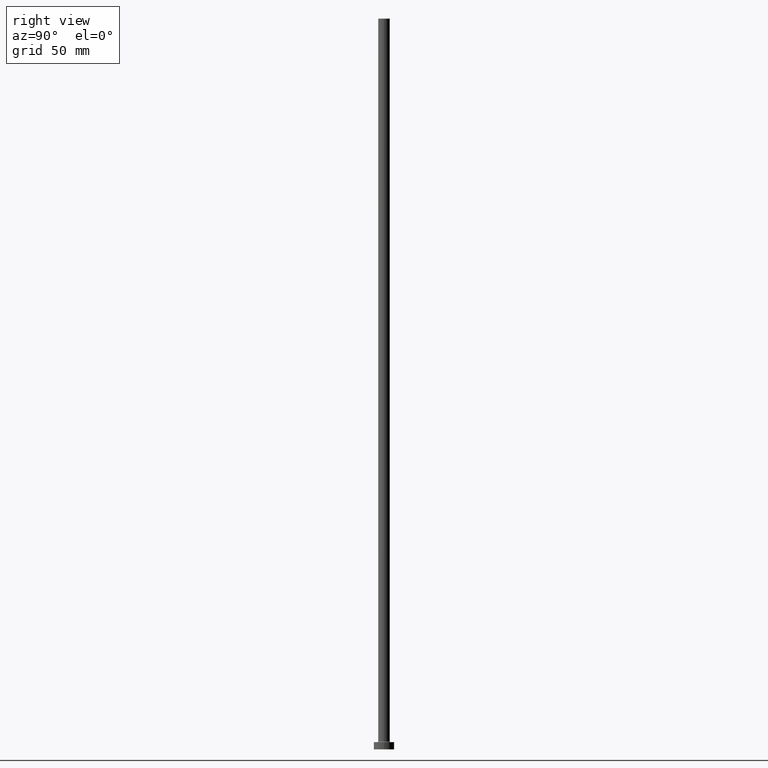
[diagram: clean part render]
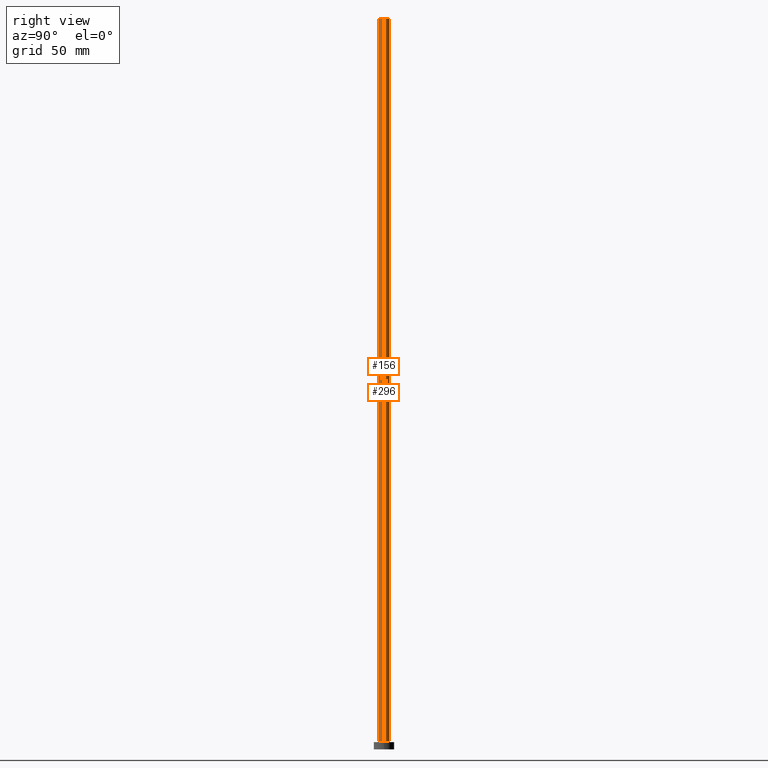
[diagram: same view with one multi-face feature highlighted, each face labeled with its STEP entity id]
A machine part, right view. The highlighted faces form ONE feature: a constant-radius fillet chain: 2 tangent blend faces with common blend radius 4 mm. The faces share edges in the B-rep.
Their STEP definitions:
[1] entity #296 (Cylinder):
#21 = VERTEX_POINT ( 'NONE', #214 ) ;
#26 = DIRECTION ( 'NONE',  ( 1.000000000000000000, 0.000000000000000000, 0.000000000000000000 ) ) ;
#33 = DIRECTION ( 'NONE',  ( -0.000000000000000000, -0.000000000000000000, -1.000000000000000000 ) ) ;
#35 = VERTEX_POINT ( 'NONE', #336 ) ;
#41 = EDGE_LOOP ( 'NONE', ( #165, #67, #358, #455 ) ) ;
#63 = CARTESIAN_POINT ( 'NONE',  ( 4.000000000000000000, 4.898587196589412829E-16, 500.0000000000000000 ) ) ;
#67 = ORIENTED_EDGE ( 'NONE', *, *, #305, .T. ) ;
#68 = DIRECTION ( 'NONE',  ( 1.000000000000000000, 0.000000000000000000, 0.000000000000000000 ) ) ;
#94 = CARTESIAN_POINT ( 'NONE',  ( -4.000000000000000000, 0.000000000000000000, 500.0000000000000000 ) ) ;
#115 = EDGE_CURVE ( 'NONE', #179, #326, #457, .T. ) ;
#117 = AXIS2_PLACEMENT_3D ( 'NONE', #284, #318, #354 ) ;
#142 = CYLINDRICAL_SURFACE ( 'NONE', #117, 4.000000000000000000 ) ;
#165 = ORIENTED_EDGE ( 'NONE', *, *, #115, .F. ) ;
#172 = AXIS2_PLACEMENT_3D ( 'NONE', #177, #429, #68 ) ;
#175 = CARTESIAN_POINT ( 'NONE',  ( -4.000000000000000000, 0.000000000000000000, 500.0000000000000000 ) ) ;
#177 = CARTESIAN_POINT ( 'NONE',  ( 0.000000000000000000, 0.000000000000000000, 5.500000000000005329 ) ) ;
#179 = VERTEX_POINT ( 'NONE', #233 ) ;
#214 = CARTESIAN_POINT ( 'NONE',  ( 4.000000000000000000, 4.898587196589412829E-16, 5.500000000000005329 ) ) ;
#233 = CARTESIAN_POINT ( 'NONE',  ( 4.000000000000000000, 4.898587196589412829E-16, 500.0000000000000000 ) ) ;
#235 = DIRECTION ( 'NONE',  ( 0.000000000000000000, 0.000000000000000000, 1.000000000000000000 ) ) ;
#241 = LINE ( 'NONE', #63, #299 ) ;
#242 = VECTOR ( 'NONE', #33, 1000.000000000000000 ) ;
#250 = LINE ( 'NONE', #94, #242 ) ;
#266 = AXIS2_PLACEMENT_3D ( 'NONE', #270, #235, #26 ) ;
#270 = CARTESIAN_POINT ( 'NONE',  ( 0.000000000000000000, 0.000000000000000000, 500.0000000000000000 ) ) ;
#284 = CARTESIAN_POINT ( 'NONE',  ( 0.000000000000000000, 0.000000000000000000, 500.0000000000000000 ) ) ;
#296 = ADVANCED_FACE ( 'NONE', ( #461 ), #142, .T. ) ;
#299 = VECTOR ( 'NONE', #389, 1000.000000000000000 ) ;
#305 = EDGE_CURVE ( 'NONE', #179, #21, #241, .T. ) ;
#318 = DIRECTION ( 'NONE',  ( -0.000000000000000000, -0.000000000000000000, -1.000000000000000000 ) ) ;
#326 = VERTEX_POINT ( 'NONE', #175 ) ;
#332 = EDGE_CURVE ( 'NONE', #326, #35, #250, .T. ) ;
#336 = CARTESIAN_POINT ( 'NONE',  ( -4.000000000000000000, 0.000000000000000000, 5.500000000000005329 ) ) ;
#354 = DIRECTION ( 'NONE',  ( -1.000000000000000000, 0.000000000000000000, 0.000000000000000000 ) ) ;
#358 = ORIENTED_EDGE ( 'NONE', *, *, #366, .T. ) ;
#366 = EDGE_CURVE ( 'NONE', #21, #35, #417, .T. ) ;
#389 = DIRECTION ( 'NONE',  ( -0.000000000000000000, -0.000000000000000000, -1.000000000000000000 ) ) ;
#417 = CIRCLE ( 'NONE', #172, 4.000000000000000000 ) ;
#429 = DIRECTION ( 'NONE',  ( 0.000000000000000000, 0.000000000000000000, 1.000000000000000000 ) ) ;
#455 = ORIENTED_EDGE ( 'NONE', *, *, #332, .F. ) ;
#457 = CIRCLE ( 'NONE', #266, 4.000000000000000000 ) ;
#461 = FACE_OUTER_BOUND ( 'NONE', #41, .T. ) ;
[2] entity #156 (Cylinder):
#1 = ORIENTED_EDGE ( 'NONE', *, *, #434, .T. ) ;
#21 = VERTEX_POINT ( 'NONE', #214 ) ;
#33 = DIRECTION ( 'NONE',  ( -0.000000000000000000, -0.000000000000000000, -1.000000000000000000 ) ) ;
#35 = VERTEX_POINT ( 'NONE', #336 ) ;
#46 = AXIS2_PLACEMENT_3D ( 'NONE', #237, #415, #91 ) ;
#63 = CARTESIAN_POINT ( 'NONE',  ( 4.000000000000000000, 4.898587196589412829E-16, 500.0000000000000000 ) ) ;
#89 = DIRECTION ( 'NONE',  ( 1.000000000000000000, 0.000000000000000000, 0.000000000000000000 ) ) ;
#91 = DIRECTION ( 'NONE',  ( -1.000000000000000000, 0.000000000000000000, 0.000000000000000000 ) ) ;
#94 = CARTESIAN_POINT ( 'NONE',  ( -4.000000000000000000, 0.000000000000000000, 500.0000000000000000 ) ) ;
#140 = EDGE_LOOP ( 'NONE', ( #386, #174, #348, #1 ) ) ;
#155 = AXIS2_PLACEMENT_3D ( 'NONE', #453, #166, #300 ) ;
#156 = ADVANCED_FACE ( 'NONE', ( #304 ), #445, .T. ) ;
#160 = CIRCLE ( 'NONE', #155, 4.000000000000000000 ) ;
#166 = DIRECTION ( 'NONE',  ( 0.000000000000000000, 0.000000000000000000, 1.000000000000000000 ) ) ;
#174 = ORIENTED_EDGE ( 'NONE', *, *, #412, .F. ) ;
#175 = CARTESIAN_POINT ( 'NONE',  ( -4.000000000000000000, 0.000000000000000000, 500.0000000000000000 ) ) ;
#179 = VERTEX_POINT ( 'NONE', #233 ) ;
#214 = CARTESIAN_POINT ( 'NONE',  ( 4.000000000000000000, 4.898587196589412829E-16, 5.500000000000005329 ) ) ;
#233 = CARTESIAN_POINT ( 'NONE',  ( 4.000000000000000000, 4.898587196589412829E-16, 500.0000000000000000 ) ) ;
#237 = CARTESIAN_POINT ( 'NONE',  ( 0.000000000000000000, 0.000000000000000000, 500.0000000000000000 ) ) ;
#241 = LINE ( 'NONE', #63, #299 ) ;
#242 = VECTOR ( 'NONE', #33, 1000.000000000000000 ) ;
#250 = LINE ( 'NONE', #94, #242 ) ;
#258 = CIRCLE ( 'NONE', #379, 4.000000000000000000 ) ;
#299 = VECTOR ( 'NONE', #389, 1000.000000000000000 ) ;
#300 = DIRECTION ( 'NONE',  ( 1.000000000000000000, 0.000000000000000000, 0.000000000000000000 ) ) ;
#304 = FACE_OUTER_BOUND ( 'NONE', #140, .T. ) ;
#305 = EDGE_CURVE ( 'NONE', #179, #21, #241, .T. ) ;
#306 = CARTESIAN_POINT ( 'NONE',  ( 0.000000000000000000, 0.000000000000000000, 500.0000000000000000 ) ) ;
#312 = DIRECTION ( 'NONE',  ( 0.000000000000000000, 0.000000000000000000, 1.000000000000000000 ) ) ;
#326 = VERTEX_POINT ( 'NONE', #175 ) ;
#332 = EDGE_CURVE ( 'NONE', #326, #35, #250, .T. ) ;
#336 = CARTESIAN_POINT ( 'NONE',  ( -4.000000000000000000, 0.000000000000000000, 5.500000000000005329 ) ) ;
#348 = ORIENTED_EDGE ( 'NONE', *, *, #332, .T. ) ;
#379 = AXIS2_PLACEMENT_3D ( 'NONE', #306, #312, #89 ) ;
#386 = ORIENTED_EDGE ( 'NONE', *, *, #305, .F. ) ;
#389 = DIRECTION ( 'NONE',  ( -0.000000000000000000, -0.000000000000000000, -1.000000000000000000 ) ) ;
#412 = EDGE_CURVE ( 'NONE', #326, #179, #258, .T. ) ;
#415 = DIRECTION ( 'NONE',  ( -0.000000000000000000, -0.000000000000000000, -1.000000000000000000 ) ) ;
#434 = EDGE_CURVE ( 'NONE', #35, #21, #160, .T. ) ;
#445 = CYLINDRICAL_SURFACE ( 'NONE', #46, 4.000000000000000000 ) ;
#453 = CARTESIAN_POINT ( 'NONE',  ( 0.000000000000000000, 0.000000000000000000, 5.500000000000005329 ) ) ;